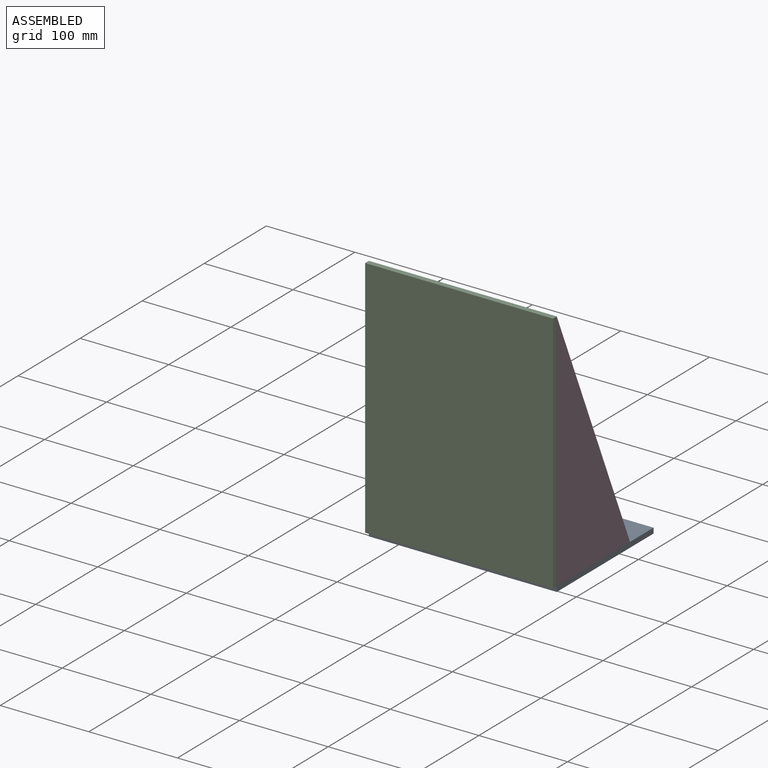
[diagram: assembled view]
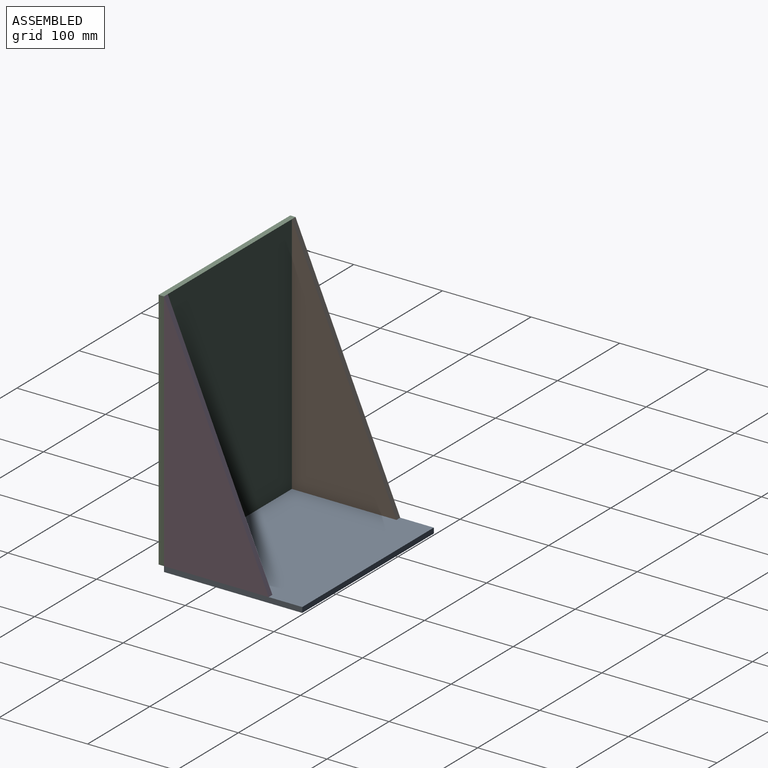
[diagram: assembled view, second angle]
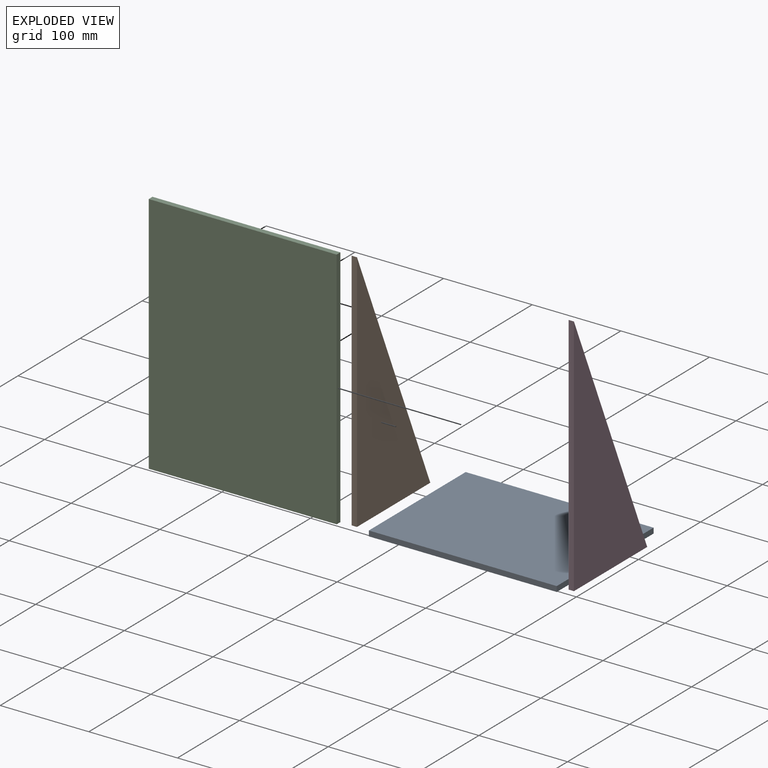
[diagram: exploded view]
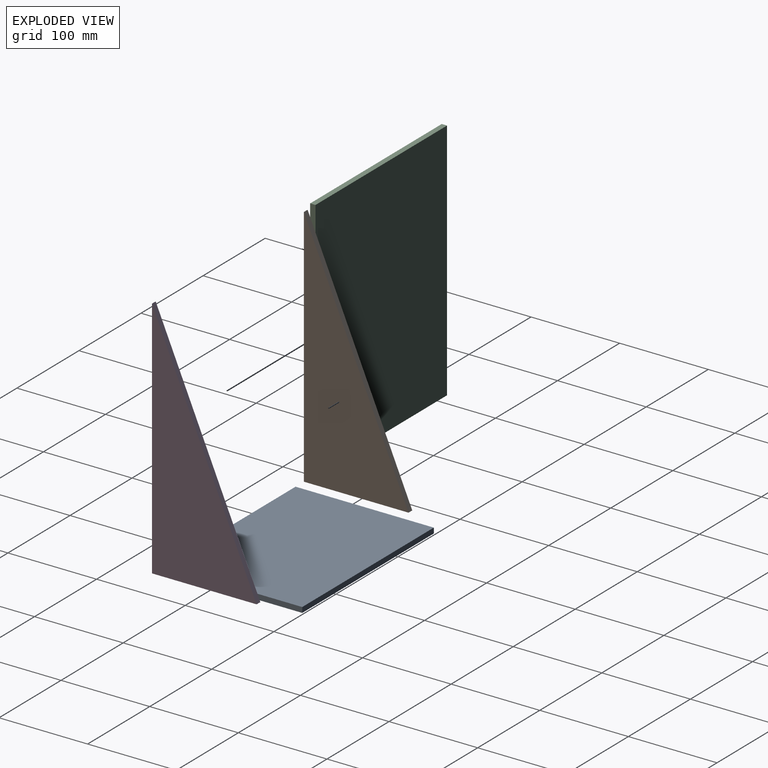
[diagram: exploded view, second angle]
ASSEMBLY  parts=4 mates=3
PART A: 6 faces, bbox 212x156x6 mm
  f0: plane 212x6mm, normal (0,1,0), area 1272mm2, adj f1,f3,f4,f5
  f1: plane 156x6mm, normal (-1,0,0), area 936mm2, adj f0,f2,f4,f5
  f2: plane 212x6mm, normal (0,-1,0), area 1272mm2, adj f1,f3,f4,f5
  f3: plane 156x6mm, normal (1,0,0), area 936mm2, adj f0,f2,f4,f5
  f4: plane 212x156mm, normal (0,0,1), area 33072mm2, adj f0,f1,f2,f3
  f5: plane 212x156mm, normal (0,0,-1), area 33072mm2, adj f0,f1,f2,f3
PART B: 5 faces, bbox 118.1x275x6 mm
  f0: plane 118.11x6mm, normal (0,1,0), area 708.6mm2, adj f1,f2,f3,f4
  f1: plane 275x6mm, normal (-1,0,0), area 1650mm2, adj f0,f2,f3,f4
  f2: plane 275x118.11mm, normal (0.92,-0.39,0), area 1795.7mm2, adj f0,f1,f3,f4
  f3: plane 275x118.11mm, normal (0,0,1), area 16239.5mm2, adj f0,f1,f2
  f4: plane 275x118.11mm, normal (0,0,-1), area 16239.5mm2, adj f0,f1,f2
PART C: 6 faces, bbox 212x275x6 mm
  f0: plane 212x6mm, normal (0,-1,0), area 1272mm2, adj f1,f3,f4,f5
  f1: plane 275x6mm, normal (1,0,0), area 1650mm2, adj f0,f2,f4,f5
  f2: plane 212x6mm, normal (0,1,0), area 1272mm2, adj f1,f3,f4,f5
  f3: plane 275x6mm, normal (-1,0,0), area 1650mm2, adj f0,f2,f4,f5
  f4: plane 275x212mm, normal (0,0,1), area 58300mm2, adj f0,f1,f2,f3
  f5: plane 275x212mm, normal (0,0,-1), area 58300mm2, adj f0,f1,f2,f3
PART D: same geometry as B
PLACE A rot(axis=(1,0,0),180deg) t=(-62.66,-393.56,64.82)mm
PLACE B rot(axis=(-0.58,-0.58,0.58),120deg) t=(-162.66,262.44,189.82)mm
PLACE C rot(axis=(0,0.71,0.71),180deg) t=(-62.66,0.44,214.82)mm
PLACE D rot(axis=(-0.58,-0.58,0.58),120deg) t=(43.34,262.44,189.82)mm
MATE fastened A.f3 <-> D.f4  axis (1,0,0) through (43.34,6.44,64.82)mm
MATE fastened A.f1 <-> B.f3  axis (-1,0,0) through (-168.66,6.44,64.82)mm
MATE fastened C.f1 <-> B.f3  axis (-1,0,0) through (-168.66,6.44,339.82)mm
